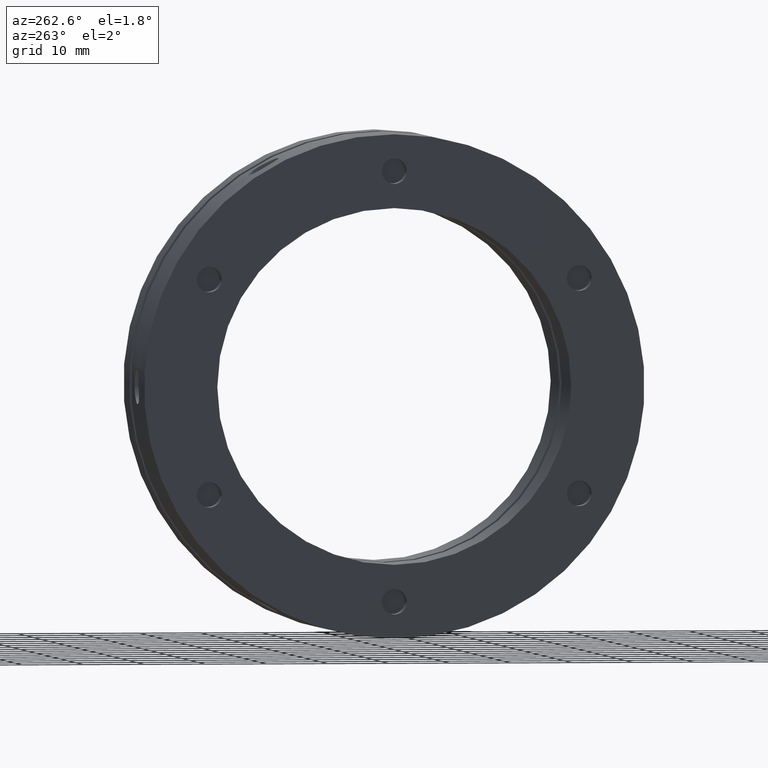
[diagram: clean part render]
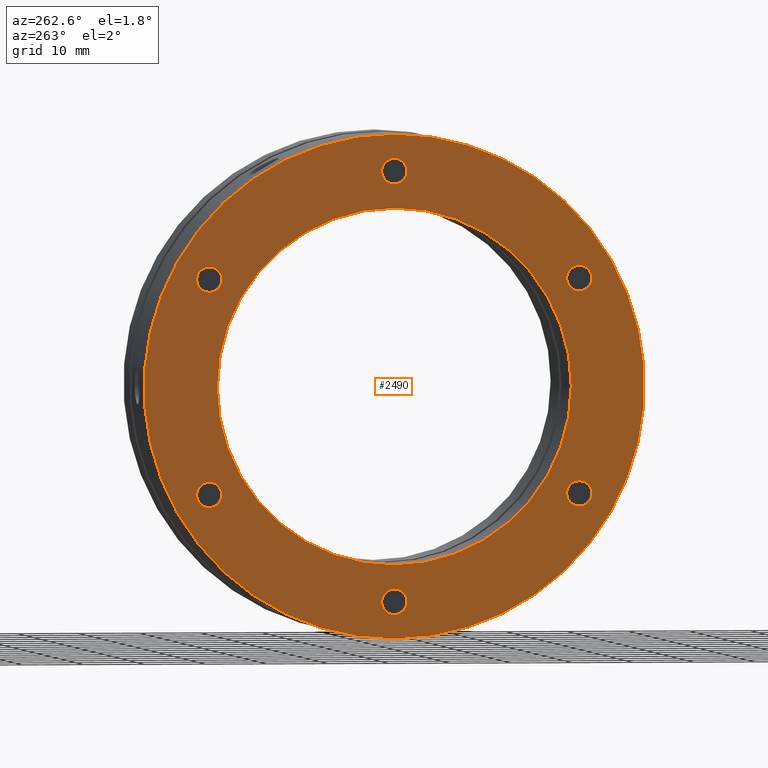
[diagram: same view with one face highlighted and labeled with its STEP entity id]
A machine part, auxiliary view. The second image highlights one B-rep face of the part: STEP entity #2490.
In plain terms, the highlighted planar face has unit normal (-1, 0, 0).
Its self-contained STEP definition (entity closure, byte-faithful):
#323 = CARTESIAN_POINT ( 'NONE',  ( -8.673617379884035500E-015, 0.0000000000000000000, 0.0000000000000000000 ) ) ;
#324 = DIRECTION ( 'NONE',  ( 1.000000000000000000, 0.0000000000000000000, 0.0000000000000000000 ) ) ;
#325 = DIRECTION ( 'NONE',  ( 0.0000000000000000000, 0.0000000000000000000, -1.000000000000000000 ) ) ;
#401 = CARTESIAN_POINT ( 'NONE',  ( -1.127570259384924600E-014, -30.31088913245536500, 17.50000000000001400 ) ) ;
#402 = DIRECTION ( 'NONE',  ( 1.000000000000000000, -0.0000000000000000000, -0.0000000000000000000 ) ) ;
#403 = DIRECTION ( 'NONE',  ( 0.0000000000000000000, 0.0000000000000000000, 1.000000000000000000 ) ) ;
#1015 = EDGE_CURVE ( 'NONE', #3065, #3087, #2612, .T. ) ;
#1021 = EDGE_CURVE ( 'NONE', #3097, #3096, #2620, .T. ) ;
#1069 = AXIS2_PLACEMENT_3D ( 'NONE', #1574, #1575, #1576 ) ;
#1075 = AXIS2_PLACEMENT_3D ( 'NONE', #1647, #1648, #1649 ) ;
#1079 = AXIS2_PLACEMENT_3D ( 'NONE', #1667, #1668, #1669 ) ;
#1089 = AXIS2_PLACEMENT_3D ( 'NONE', #2187, #2188, #2189 ) ;
#1090 = AXIS2_PLACEMENT_3D ( 'NONE', #2191, #2192, #2193 ) ;
#1092 = AXIS2_PLACEMENT_3D ( 'NONE', #2199, #2200, #2201 ) ;
#1094 = AXIS2_PLACEMENT_3D ( 'NONE', #2208, #2209, #2210 ) ;
#1095 = AXIS2_PLACEMENT_3D ( 'NONE', #2213, #2214, #2215 ) ;
#1113 = AXIS2_PLACEMENT_3D ( 'NONE', #2395, #2396, #2397 ) ;
#1114 = AXIS2_PLACEMENT_3D ( 'NONE', #2398, #2399, #2400 ) ;
#1115 = AXIS2_PLACEMENT_3D ( 'NONE', #2401, #2402, #2403 ) ;
#1116 = AXIS2_PLACEMENT_3D ( 'NONE', #2404, #2405, #2406 ) ;
#1118 = AXIS2_PLACEMENT_3D ( 'NONE', #4046, #4047, #4048 ) ;
#1119 = AXIS2_PLACEMENT_3D ( 'NONE', #4049, #4050, #4051 ) ;
#1316 = DIRECTION ( 'NONE',  ( -1.000000000000000000, 0.0000000000000000000, 0.0000000000000000000 ) ) ;
#1318 = CARTESIAN_POINT ( 'NONE',  ( -1.065386000000000000E-014, 35.00000000000000000, 0.0000000000000000000 ) ) ;
#1320 = PLANE ( 'NONE',  #4595 ) ;
#1321 = DIRECTION ( 'NONE',  ( 0.0000000000000000000, 0.0000000000000000000, 1.000000000000000000 ) ) ;
#1574 = CARTESIAN_POINT ( 'NONE',  ( -8.673617379884035500E-015, 0.0000000000000000000, 0.0000000000000000000 ) ) ;
#1575 = DIRECTION ( 'NONE',  ( 1.000000000000000000, 0.0000000000000000000, 0.0000000000000000000 ) ) ;
#1576 = DIRECTION ( 'NONE',  ( 0.0000000000000000000, 0.0000000000000000000, -1.000000000000000000 ) ) ;
#1647 = CARTESIAN_POINT ( 'NONE',  ( -1.127570259384924600E-014, -30.31088913245537200, -17.50000000000000000 ) ) ;
#1648 = DIRECTION ( 'NONE',  ( 1.000000000000000000, -0.0000000000000000000, -0.0000000000000000000 ) ) ;
#1649 = DIRECTION ( 'NONE',  ( 0.0000000000000000000, 0.0000000000000000000, 1.000000000000000000 ) ) ;
#1667 = CARTESIAN_POINT ( 'NONE',  ( -1.387778780781445700E-014, 0.0000000000000000000, 0.0000000000000000000 ) ) ;
#1668 = DIRECTION ( 'NONE',  ( 1.000000000000000000, 0.0000000000000000000, 0.0000000000000000000 ) ) ;
#1669 = DIRECTION ( 'NONE',  ( 0.0000000000000000000, 0.0000000000000000000, -1.000000000000000000 ) ) ;
#1986 = CARTESIAN_POINT ( 'NONE',  ( -1.387778780781445700E-014, 0.0000000000000000000, -41.00000000000000000 ) ) ;
#1988 = CARTESIAN_POINT ( 'NONE',  ( -8.673617379884035500E-015, 0.0000000000000000000, -29.00000000000000400 ) ) ;
#1989 = CARTESIAN_POINT ( 'NONE',  ( -1.387778780781445700E-014, 5.021051876504149000E-015, 41.00000000000000000 ) ) ;
#2017 = CARTESIAN_POINT ( 'NONE',  ( -8.673617379884035500E-015, 3.551475717527324800E-015, 29.00000000000000400 ) ) ;
#2023 = CARTESIAN_POINT ( 'NONE',  ( -1.127570259384924600E-014, 0.0000000000000000000, 37.06700000000001400 ) ) ;
#2024 = CARTESIAN_POINT ( 'NONE',  ( -1.127570259384924600E-014, 2.531344933837580300E-016, 32.93300000000002100 ) ) ;
#2028 = CARTESIAN_POINT ( 'NONE',  ( -1.127570259384924600E-014, -30.31088913245536500, 19.56700000000001400 ) ) ;
#2030 = CARTESIAN_POINT ( 'NONE',  ( -1.127570259384924600E-014, -30.31088913245536500, 15.43300000000001600 ) ) ;
#2034 = CARTESIAN_POINT ( 'NONE',  ( -1.127570259384924600E-014, -30.31088913245537200, -15.43300000000000200 ) ) ;
#2035 = CARTESIAN_POINT ( 'NONE',  ( -1.127570259384924600E-014, -30.31088913245537200, -19.56700000000000000 ) ) ;
#2038 = CARTESIAN_POINT ( 'NONE',  ( -1.127570259384924600E-014, -6.661337999999999900E-015, -32.93300000000002100 ) ) ;
#2039 = CARTESIAN_POINT ( 'NONE',  ( -1.127570259384924600E-014, -6.408203506616242300E-015, -37.06700000000001400 ) ) ;
#2042 = CARTESIAN_POINT ( 'NONE',  ( -1.127570259384924600E-014, 30.31088913245535800, -15.43300000000002600 ) ) ;
#2043 = CARTESIAN_POINT ( 'NONE',  ( -1.127570259384924600E-014, 30.31088913245535800, -19.56700000000002500 ) ) ;
#2047 = CARTESIAN_POINT ( 'NONE',  ( -1.127570259384924600E-014, 30.31088913245538700, 19.56699999999998200 ) ) ;
#2048 = CARTESIAN_POINT ( 'NONE',  ( -1.127570259384924600E-014, 30.31088913245538700, 15.43299999999998600 ) ) ;
#2187 = CARTESIAN_POINT ( 'NONE',  ( -1.127570259384924600E-014, 0.0000000000000000000, 35.00000000000001400 ) ) ;
#2188 = DIRECTION ( 'NONE',  ( 1.000000000000000000, -0.0000000000000000000, -0.0000000000000000000 ) ) ;
#2189 = DIRECTION ( 'NONE',  ( 0.0000000000000000000, 0.0000000000000000000, 1.000000000000000000 ) ) ;
#2191 = CARTESIAN_POINT ( 'NONE',  ( -1.127570259384924600E-014, -6.661337999999999900E-015, -35.00000000000001400 ) ) ;
#2192 = DIRECTION ( 'NONE',  ( 1.000000000000000000, -0.0000000000000000000, -0.0000000000000000000 ) ) ;
#2193 = DIRECTION ( 'NONE',  ( 0.0000000000000000000, 0.0000000000000000000, 1.000000000000000000 ) ) ;
#2199 = CARTESIAN_POINT ( 'NONE',  ( -1.127570259384924600E-014, 30.31088913245538700, 17.49999999999998600 ) ) ;
#2200 = DIRECTION ( 'NONE',  ( 1.000000000000000000, -0.0000000000000000000, -0.0000000000000000000 ) ) ;
#2201 = DIRECTION ( 'NONE',  ( 0.0000000000000000000, 0.0000000000000000000, 1.000000000000000000 ) ) ;
#2208 = CARTESIAN_POINT ( 'NONE',  ( -1.127570259384924600E-014, 30.31088913245535800, -17.50000000000002500 ) ) ;
#2209 = DIRECTION ( 'NONE',  ( 1.000000000000000000, -0.0000000000000000000, -0.0000000000000000000 ) ) ;
#2210 = DIRECTION ( 'NONE',  ( 0.0000000000000000000, 0.0000000000000000000, 1.000000000000000000 ) ) ;
#2213 = CARTESIAN_POINT ( 'NONE',  ( -1.127570259384924600E-014, -30.31088913245536500, 17.50000000000001400 ) ) ;
#2214 = DIRECTION ( 'NONE',  ( 1.000000000000000000, -0.0000000000000000000, -0.0000000000000000000 ) ) ;
#2215 = DIRECTION ( 'NONE',  ( 0.0000000000000000000, 0.0000000000000000000, 1.000000000000000000 ) ) ;
#2395 = CARTESIAN_POINT ( 'NONE',  ( -1.127570259384924600E-014, -30.31088913245537200, -17.50000000000000000 ) ) ;
#2396 = DIRECTION ( 'NONE',  ( 1.000000000000000000, -0.0000000000000000000, -0.0000000000000000000 ) ) ;
#2397 = DIRECTION ( 'NONE',  ( 0.0000000000000000000, 0.0000000000000000000, 1.000000000000000000 ) ) ;
#2398 = CARTESIAN_POINT ( 'NONE',  ( -1.127570259384924600E-014, 0.0000000000000000000, 35.00000000000001400 ) ) ;
#2399 = DIRECTION ( 'NONE',  ( 1.000000000000000000, -0.0000000000000000000, -0.0000000000000000000 ) ) ;
#2400 = DIRECTION ( 'NONE',  ( 0.0000000000000000000, 0.0000000000000000000, 1.000000000000000000 ) ) ;
#2401 = CARTESIAN_POINT ( 'NONE',  ( -1.127570259384924600E-014, -6.661337999999999900E-015, -35.00000000000001400 ) ) ;
#2402 = DIRECTION ( 'NONE',  ( 1.000000000000000000, -0.0000000000000000000, -0.0000000000000000000 ) ) ;
#2403 = DIRECTION ( 'NONE',  ( 0.0000000000000000000, 0.0000000000000000000, 1.000000000000000000 ) ) ;
#2404 = CARTESIAN_POINT ( 'NONE',  ( -1.387778780781445700E-014, 0.0000000000000000000, 0.0000000000000000000 ) ) ;
#2405 = DIRECTION ( 'NONE',  ( 1.000000000000000000, 0.0000000000000000000, 0.0000000000000000000 ) ) ;
#2406 = DIRECTION ( 'NONE',  ( 0.0000000000000000000, 0.0000000000000000000, -1.000000000000000000 ) ) ;
#2490 = ADVANCED_FACE ( 'NONE', ( #2821, #2829, #2827, #2826, #2825, #2830, #2831, #2832 ), #1320, .T. ) ;
#2581 = EDGE_CURVE ( 'NONE', #3087, #3065, #3837, .T. ) ;
#2599 = EDGE_CURVE ( 'NONE', #3100, #3101, #3865, .T. ) ;
#2612 = CIRCLE ( 'NONE', #3021, 29.00000000000000400 ) ;
#2620 = CIRCLE ( 'NONE', #3028, 2.066999999999999300 ) ;
#2821 = FACE_BOUND ( 'NONE', #3347, .T. ) ;
#2825 = FACE_BOUND ( 'NONE', #3329, .T. ) ;
#2826 = FACE_BOUND ( 'NONE', #3342, .T. ) ;
#2827 = FACE_BOUND ( 'NONE', #3323, .T. ) ;
#2829 = FACE_BOUND ( 'NONE', #3330, .T. ) ;
#2830 = FACE_BOUND ( 'NONE', #3324, .T. ) ;
#2831 = FACE_BOUND ( 'NONE', #3322, .T. ) ;
#2832 = FACE_OUTER_BOUND ( 'NONE', #3321, .T. ) ;
#2927 = EDGE_CURVE ( 'NONE', #3063, #3066, #3876, .T. ) ;
#2947 = ORIENTED_EDGE ( 'NONE', *, *, #1015, .T. ) ;
#2949 = ORIENTED_EDGE ( 'NONE', *, *, #2581, .T. ) ;
#2951 = ORIENTED_EDGE ( 'NONE', *, *, #4481, .T. ) ;
#2952 = ORIENTED_EDGE ( 'NONE', *, *, #4543, .T. ) ;
#2954 = ORIENTED_EDGE ( 'NONE', *, *, #4491, .T. ) ;
#2956 = ORIENTED_EDGE ( 'NONE', *, *, #1021, .T. ) ;
#2958 = ORIENTED_EDGE ( 'NONE', *, *, #2599, .T. ) ;
#2960 = ORIENTED_EDGE ( 'NONE', *, *, #4542, .T. ) ;
#2962 = ORIENTED_EDGE ( 'NONE', *, *, #4483, .T. ) ;
#2964 = ORIENTED_EDGE ( 'NONE', *, *, #4544, .T. ) ;
#2966 = ORIENTED_EDGE ( 'NONE', *, *, #4490, .T. ) ;
#2967 = ORIENTED_EDGE ( 'NONE', *, *, #4548, .T. ) ;
#2969 = ORIENTED_EDGE ( 'NONE', *, *, #4486, .T. ) ;
#2971 = ORIENTED_EDGE ( 'NONE', *, *, #4547, .T. ) ;
#2973 = ORIENTED_EDGE ( 'NONE', *, *, #2927, .F. ) ;
#2975 = ORIENTED_EDGE ( 'NONE', *, *, #4545, .F. ) ;
#3021 = AXIS2_PLACEMENT_3D ( 'NONE', #323, #324, #325 ) ;
#3028 = AXIS2_PLACEMENT_3D ( 'NONE', #401, #402, #403 ) ;
#3063 = VERTEX_POINT ( 'NONE', #1986 ) ;
#3065 = VERTEX_POINT ( 'NONE', #1988 ) ;
#3066 = VERTEX_POINT ( 'NONE', #1989 ) ;
#3087 = VERTEX_POINT ( 'NONE', #2017 ) ;
#3092 = VERTEX_POINT ( 'NONE', #2023 ) ;
#3093 = VERTEX_POINT ( 'NONE', #2024 ) ;
#3096 = VERTEX_POINT ( 'NONE', #2028 ) ;
#3097 = VERTEX_POINT ( 'NONE', #2030 ) ;
#3100 = VERTEX_POINT ( 'NONE', #2034 ) ;
#3101 = VERTEX_POINT ( 'NONE', #2035 ) ;
#3104 = VERTEX_POINT ( 'NONE', #2038 ) ;
#3105 = VERTEX_POINT ( 'NONE', #2039 ) ;
#3108 = VERTEX_POINT ( 'NONE', #2042 ) ;
#3109 = VERTEX_POINT ( 'NONE', #2043 ) ;
#3112 = VERTEX_POINT ( 'NONE', #2047 ) ;
#3113 = VERTEX_POINT ( 'NONE', #2048 ) ;
#3321 = EDGE_LOOP ( 'NONE', ( #2973, #2975 ) ) ;
#3322 = EDGE_LOOP ( 'NONE', ( #2969, #2971 ) ) ;
#3323 = EDGE_LOOP ( 'NONE', ( #2954, #2956 ) ) ;
#3324 = EDGE_LOOP ( 'NONE', ( #2966, #2967 ) ) ;
#3329 = EDGE_LOOP ( 'NONE', ( #2962, #2964 ) ) ;
#3330 = EDGE_LOOP ( 'NONE', ( #2951, #2952 ) ) ;
#3342 = EDGE_LOOP ( 'NONE', ( #2958, #2960 ) ) ;
#3347 = EDGE_LOOP ( 'NONE', ( #2947, #2949 ) ) ;
#3367 = CIRCLE ( 'NONE', #1119, 2.066999999999999300 ) ;
#3368 = CIRCLE ( 'NONE', #1118, 2.066999999999999300 ) ;
#3837 = CIRCLE ( 'NONE', #1069, 29.00000000000000400 ) ;
#3865 = CIRCLE ( 'NONE', #1075, 2.066999999999999300 ) ;
#3876 = CIRCLE ( 'NONE', #1079, 41.00000000000000000 ) ;
#3928 = CIRCLE ( 'NONE', #1090, 2.066999999999999300 ) ;
#3935 = CIRCLE ( 'NONE', #1089, 2.066999999999999300 ) ;
#3937 = CIRCLE ( 'NONE', #1092, 2.066999999999999300 ) ;
#3943 = CIRCLE ( 'NONE', #1094, 2.066999999999999300 ) ;
#3945 = CIRCLE ( 'NONE', #1095, 2.066999999999999300 ) ;
#4019 = CIRCLE ( 'NONE', #1113, 2.066999999999999300 ) ;
#4028 = CIRCLE ( 'NONE', #1114, 2.066999999999999300 ) ;
#4029 = CIRCLE ( 'NONE', #1115, 2.066999999999999300 ) ;
#4030 = CIRCLE ( 'NONE', #1116, 41.00000000000000000 ) ;
#4046 = CARTESIAN_POINT ( 'NONE',  ( -1.127570259384924600E-014, 30.31088913245538700, 17.49999999999998600 ) ) ;
#4047 = DIRECTION ( 'NONE',  ( 1.000000000000000000, -0.0000000000000000000, -0.0000000000000000000 ) ) ;
#4048 = DIRECTION ( 'NONE',  ( 0.0000000000000000000, 0.0000000000000000000, 1.000000000000000000 ) ) ;
#4049 = CARTESIAN_POINT ( 'NONE',  ( -1.127570259384924600E-014, 30.31088913245535800, -17.50000000000002500 ) ) ;
#4050 = DIRECTION ( 'NONE',  ( 1.000000000000000000, -0.0000000000000000000, -0.0000000000000000000 ) ) ;
#4051 = DIRECTION ( 'NONE',  ( 0.0000000000000000000, 0.0000000000000000000, 1.000000000000000000 ) ) ;
#4481 = EDGE_CURVE ( 'NONE', #3092, #3093, #3935, .T. ) ;
#4483 = EDGE_CURVE ( 'NONE', #3104, #3105, #3928, .T. ) ;
#4486 = EDGE_CURVE ( 'NONE', #3112, #3113, #3937, .T. ) ;
#4490 = EDGE_CURVE ( 'NONE', #3108, #3109, #3943, .T. ) ;
#4491 = EDGE_CURVE ( 'NONE', #3096, #3097, #3945, .T. ) ;
#4542 = EDGE_CURVE ( 'NONE', #3101, #3100, #4019, .T. ) ;
#4543 = EDGE_CURVE ( 'NONE', #3093, #3092, #4028, .T. ) ;
#4544 = EDGE_CURVE ( 'NONE', #3105, #3104, #4029, .T. ) ;
#4545 = EDGE_CURVE ( 'NONE', #3066, #3063, #4030, .T. ) ;
#4547 = EDGE_CURVE ( 'NONE', #3113, #3112, #3368, .T. ) ;
#4548 = EDGE_CURVE ( 'NONE', #3109, #3108, #3367, .T. ) ;
#4595 = AXIS2_PLACEMENT_3D ( 'NONE', #1318, #1316, #1321 ) ;